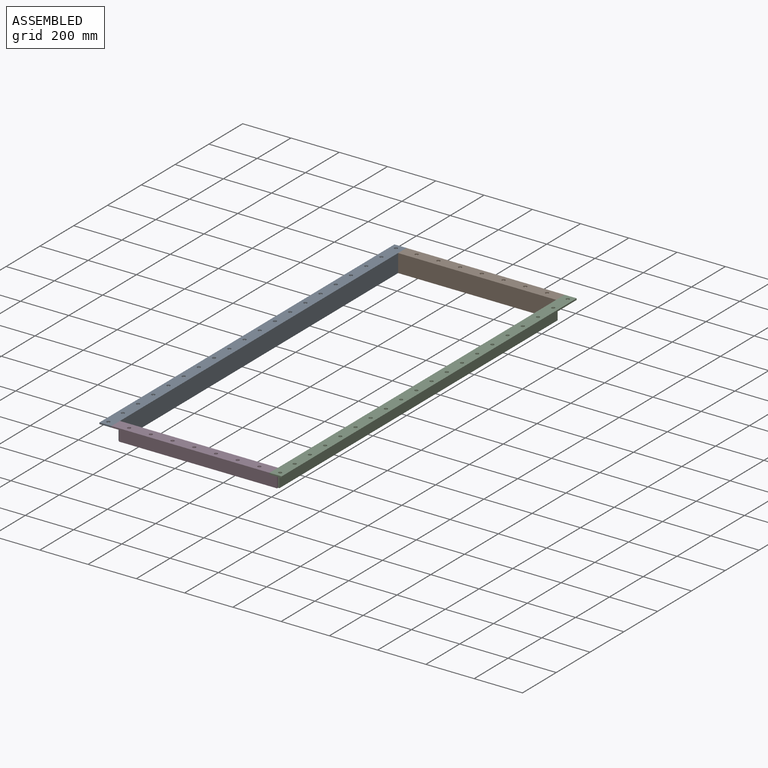
[diagram: assembled view]
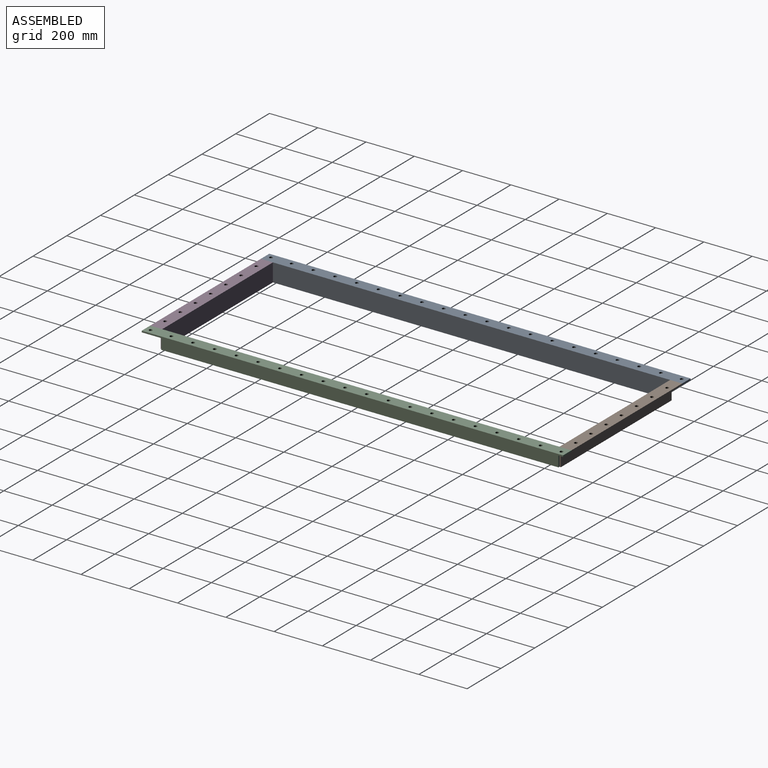
[diagram: assembled view, second angle]
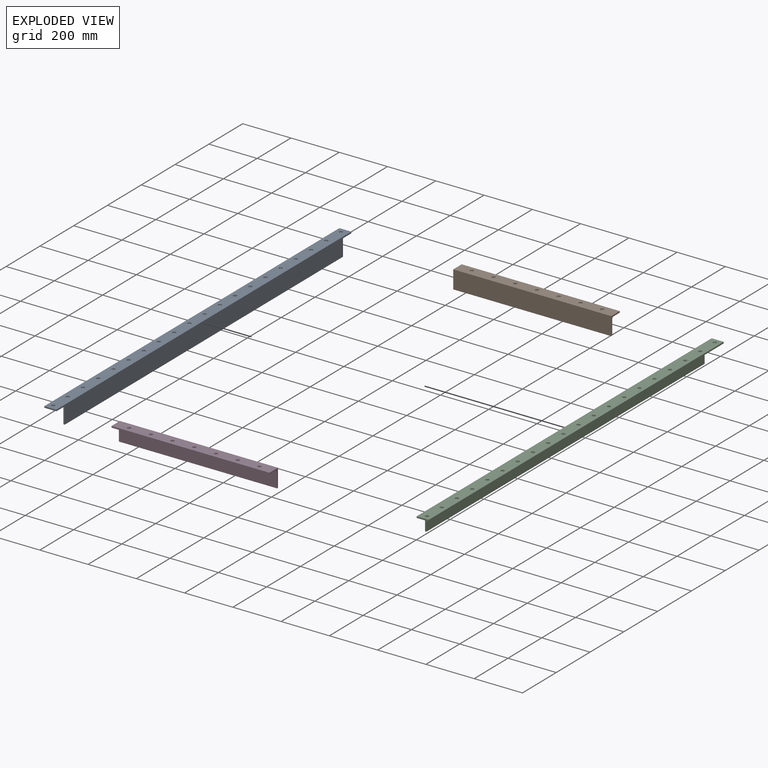
[diagram: exploded view]
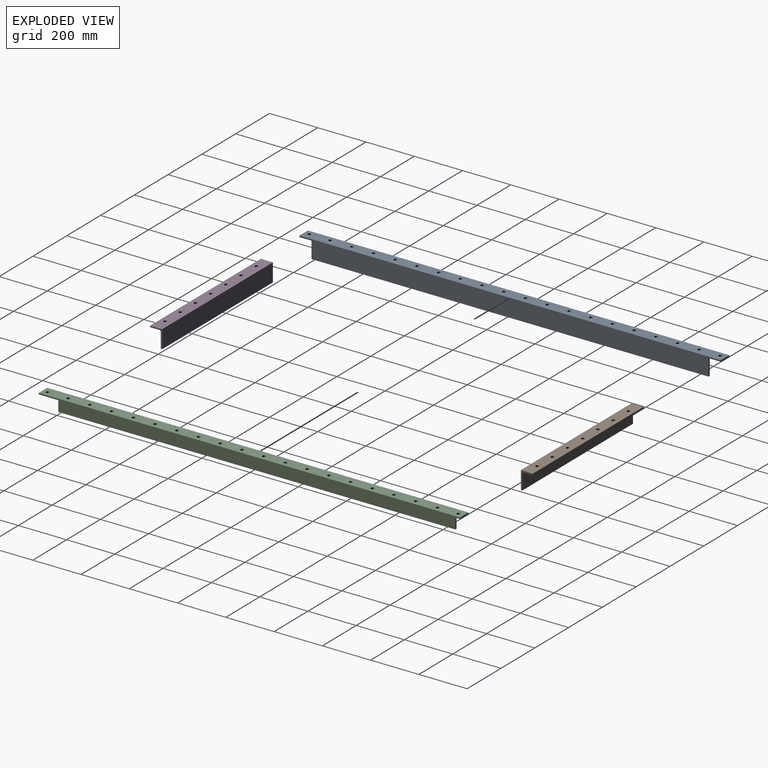
[diagram: exploded view, second angle]
ASSEMBLY  parts=4 mates=2
PART A: 34 faces, bbox 50x1746x75 mm
  f0: plane 1746x75mm, normal (1,0,0), area 123450mm2, adj f1,f2,f5,f7,f8,f9,f10,f31
  f1: plane 69x12mm, normal (0,-1,0), area 421.6mm2, adj f0,f2,f3,f4,f7,f31,f33
  f2: plane 1646x6mm, normal (0,0,-1), area 9875.4mm2, adj f0,f1,f4,f10,f32,f33
  f3: cylinder r=6mm len=1646mm, axis (0,1,0), area 15513.2mm2, adj f1,f4,f7,f10
  f4: plane 1646x63mm, normal (-1,0,0), area 103698mm2, adj f1,f2,f3,f10
  f5: plane 1746x50mm, normal (0,0,1), area 84221.2mm2, adj f0,f6,f8,f9,f11,f12,f13,f14
  f6: plane 1746x6mm, normal (-1,0,0), area 10476mm2, adj f5,f7,f8,f9
  f7: plane 1746x50mm, normal (0,0,-1), area 64469.2mm2, adj f0,f1,f3,f6,f8,f9,f10,f11
  f8: plane 50x6mm, normal (0,-1,0), area 300mm2, adj f0,f5,f6,f7
  f9: plane 50x6mm, normal (0,1,0), area 300mm2, adj f0,f5,f6,f7
  f10: plane 69x12mm, normal (0,1,0), area 421.7mm2, adj f0,f2,f3,f4,f7
  f11: cylinder r=7mm len=14mm, axis (0,0,1), area 263.9mm2, adj f5,f7
  f12: cylinder r=7mm len=14mm, axis (0,0,1), area 263.9mm2, adj f5,f7
  f13: cylinder r=7mm len=14mm, axis (0,0,1), area 263.9mm2, adj f5,f7
  f14: cylinder r=7mm len=14mm, axis (0,0,1), area 263.9mm2, adj f5,f7
  f15: cylinder r=7mm len=14mm, axis (0,0,1), area 263.9mm2, adj f5,f7
  f16: cylinder r=7mm len=14mm, axis (0,0,1), area 263.9mm2, adj f5,f7
  f17: cylinder r=7mm len=14mm, axis (0,0,1), area 263.9mm2, adj f5,f7
  f18: cylinder r=7mm len=14mm, axis (0,0,1), area 263.9mm2, adj f5,f7
  f19: cylinder r=7mm len=14mm, axis (0,0,1), area 263.9mm2, adj f5,f7
  f20: cylinder r=7mm len=14mm, axis (0,0,1), area 263.9mm2, adj f5,f7
  f21: cylinder r=7mm len=14mm, axis (0,0,1), area 263.9mm2, adj f5,f7
  f22: cylinder r=7mm len=14mm, axis (0,0,1), area 263.9mm2, adj f5,f7
  f23: cylinder r=7mm len=14mm, axis (0,0,1), area 263.9mm2, adj f5,f7
  f24: cylinder r=7mm len=14mm, axis (0,0,1), area 263.9mm2, adj f5,f7
  f25: cylinder r=7mm len=14mm, axis (0,0,1), area 263.9mm2, adj f5,f7
  f26: cylinder r=7mm len=14mm, axis (0,0,1), area 263.9mm2, adj f5,f7
  f27: cylinder r=7mm len=14mm, axis (0,0,1), area 263.9mm2, adj f5,f7
  f28: cylinder r=7mm len=14mm, axis (0,0,1), area 263.9mm2, adj f5,f7
  f29: cylinder r=7mm len=14mm, axis (0,0,1), area 263.9mm2, adj f5,f7
  f30: cylinder r=7mm len=14mm, axis (0,0,1), area 263.9mm2, adj f5,f7
  f31: plane 60x0.01mm, normal (0,0,-1), area 0.6mm2, adj f0,f1,f32,f33
  f32: plane 10x0.01mm, normal (0,-1,0), area 0.1mm2, adj f0,f2,f31,f33
  f33: plane 60x10mm, normal (1,0,0), area 600mm2, adj f1,f2,f31,f32
PART B: 16 faces, bbox 50x655x75 mm
  f0: plane 655x50mm, normal (0,0,1), area 31672.4mm2, adj f1,f6,f7,f8,f9,f10,f11,f12
  f1: plane 655x75mm, normal (-1,0,0), area 49125mm2, adj f0,f2,f7,f8
  f2: plane 655x6mm, normal (0,0,-1), area 3930mm2, adj f1,f3,f7,f8
  f3: plane 655x63mm, normal (1,0,0), area 41265mm2, adj f2,f4,f7,f8
  f4: cylinder r=6mm len=655mm, axis (0,1,0), area 6173.2mm2, adj f3,f5,f7,f8
  f5: plane 655x38mm, normal (0,0,-1), area 23812.4mm2, adj f4,f6,f7,f8,f9,f10,f11,f12
  f6: plane 655x6mm, normal (1,0,0), area 3930mm2, adj f0,f5,f7,f8
  f7: plane 75x50mm, normal (0,-1,0), area 721.7mm2, adj f0,f1,f2,f3,f4,f5,f6
  f8: plane 75x50mm, normal (0,1,0), area 721.7mm2, adj f0,f1,f2,f3,f4,f5,f6
  f9: cylinder r=7mm len=14mm, axis (0,0,-1), area 263.9mm2, adj f0,f5
  f10: cylinder r=7mm len=14mm, axis (0,0,-1), area 263.9mm2, adj f0,f5
  f11: cylinder r=7mm len=14mm, axis (0,0,-1), area 263.9mm2, adj f0,f5
  f12: cylinder r=7mm len=14mm, axis (0,0,-1), area 263.9mm2, adj f0,f5
  f13: cylinder r=7mm len=14mm, axis (0,0,-1), area 263.9mm2, adj f0,f5
  f14: cylinder r=7mm len=14mm, axis (0,0,-1), area 263.9mm2, adj f0,f5
  f15: cylinder r=7mm len=14mm, axis (0,0,-1), area 263.9mm2, adj f0,f5
PART C: same geometry as A
PART D: same geometry as B
PLACE A t=(-228.23,-153.46,2.47)mm fixed
PLACE B rot(axis=(0,0,1),90deg) t=(83.07,647.59,2.47)mm
PLACE C rot(axis=(0,0,1),180deg) t=(394.36,-153.46,2.47)mm
PLACE D rot(axis=(0,0,-1),90deg) t=(83.07,-954.52,2.47)mm fixed
MATE fastened B.f8 <-> A.f0  axis (-1,0,0) through (-244.43,719.54,2.47)mm
MATE fastened C.f0 <-> D.f8  axis (-1,0,0) through (410.57,-1026.46,2.47)mm
